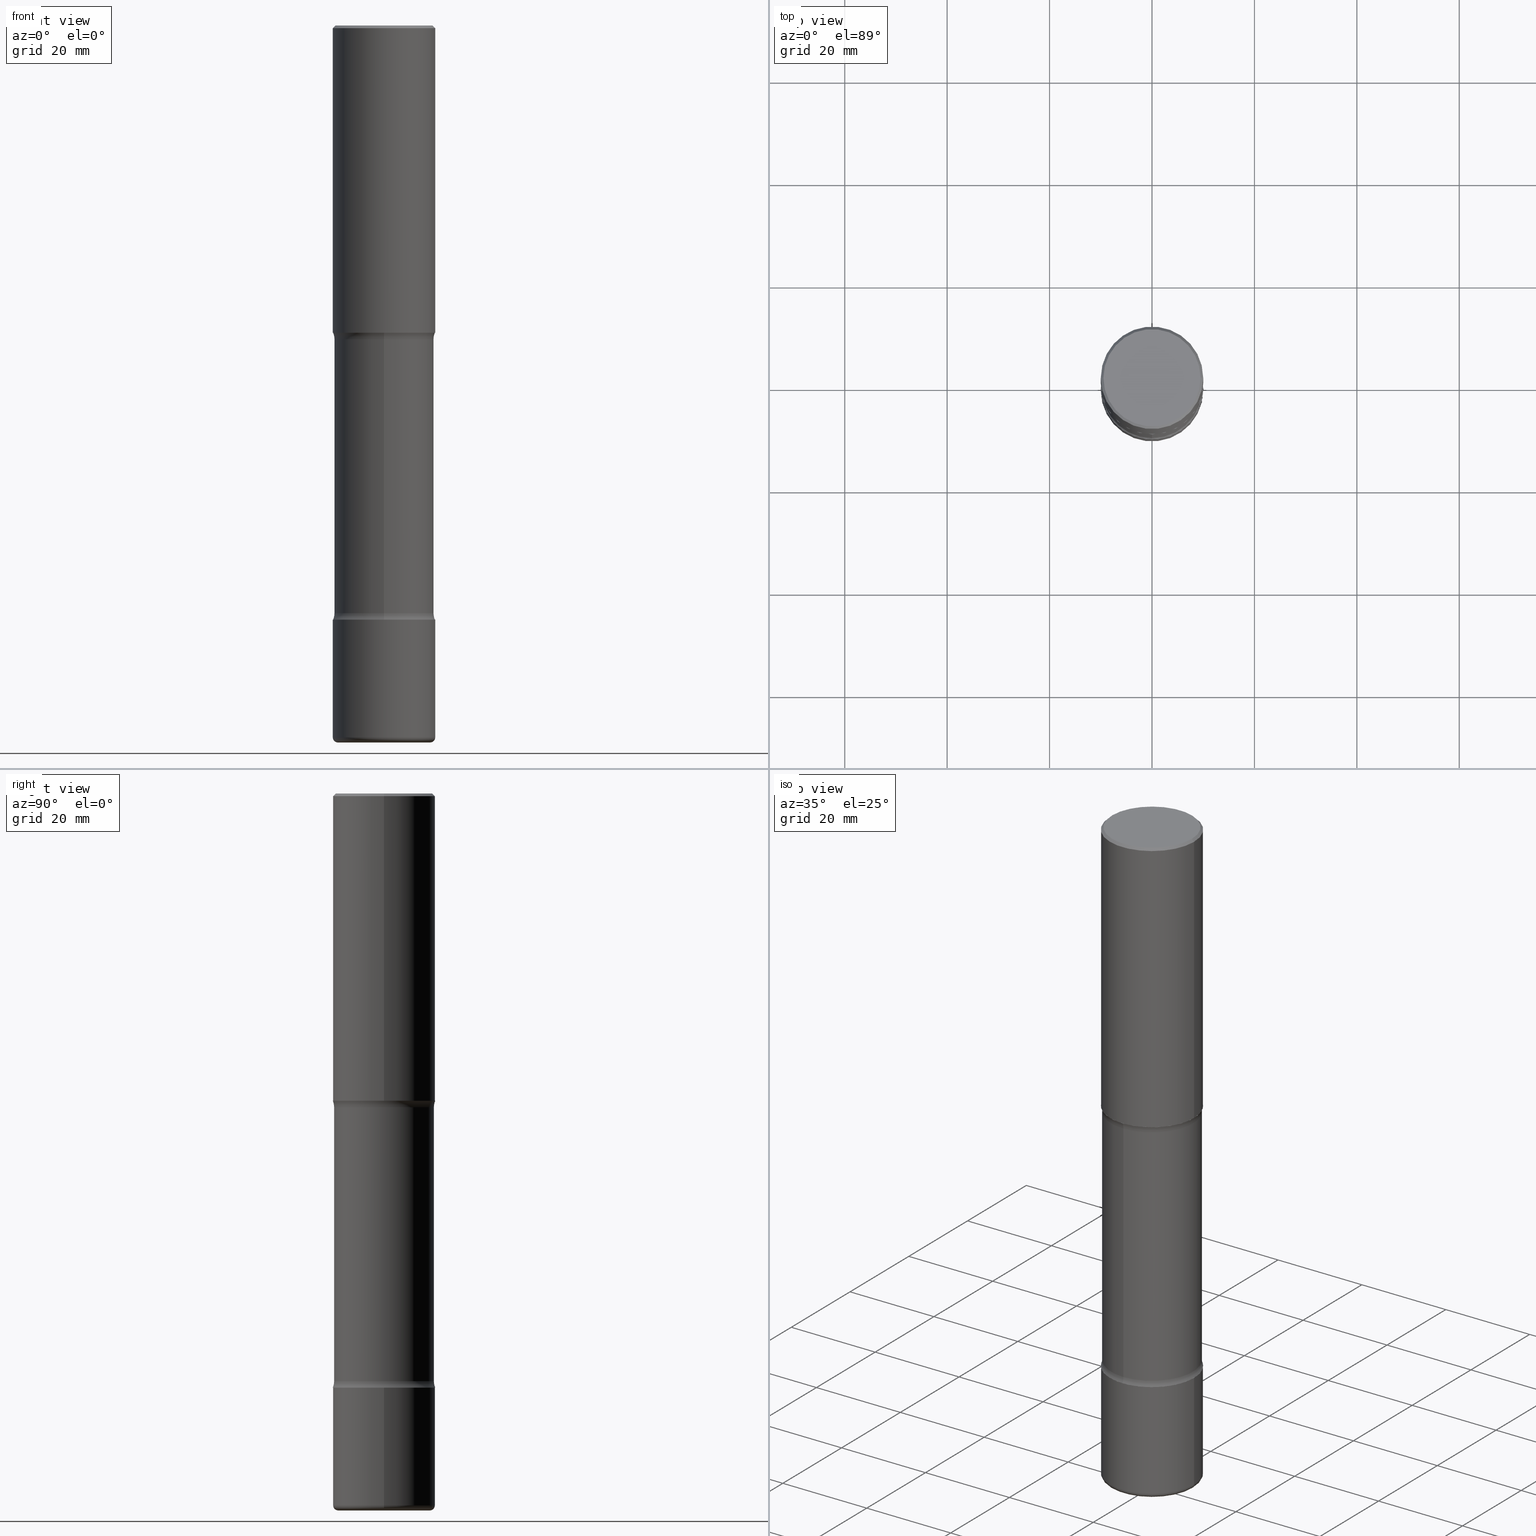
[diagram: canonical four-view strip — front | top / right | iso, engineering-drawing reading convention]
A machine part, canonical four-view strip (front | top / right | iso — engineering-drawing reading convention). The complete STEP part file that produces these views, byte-faithful:
ISO-10303-21;
HEADER;
FILE_DESCRIPTION (( 'STEP AP203' ),
    '1' );
FILE_NAME ('46938.STEP',
    '2024-03-02T06:04:21',
    ( '' ),
    ( '' ),
    'SwSTEP 2.0',
    'SolidWorks 2023',
    '' );
FILE_SCHEMA (( 'CONFIG_CONTROL_DESIGN' ));
ENDSEC;

DATA;
#1 = ORIENTED_EDGE ( 'NONE', *, *, #461, .T. ) ;
#2 = COORDINATED_UNIVERSAL_TIME_OFFSET ( 5, 0, .BEHIND. ) ;
#3 = EDGE_CURVE ( 'NONE', #6, #55, #187, .T. ) ;
#4 = DIRECTION ( 'NONE',  ( 1.000000000000000000, -6.982962677686265133E-15, 0.000000000000000000 ) ) ;
#5 = SECURITY_CLASSIFICATION_LEVEL ( 'unclassified' ) ;
#6 = VERTEX_POINT ( 'NONE', #19 ) ;
#7 = CIRCLE ( 'NONE', #311, 0.3937000000000002164 ) ;
#8 = CIRCLE ( 'NONE', #394, 0.3937000000000005495 ) ;
#9 = PLANE ( 'NONE',  #58 ) ;
#10 = CC_DESIGN_SECURITY_CLASSIFICATION ( #457, ( #297 ) ) ;
#11 = DIRECTION ( 'NONE',  ( -2.540811743831258719E-29, 3.354944825550891508E-15, 1.000000000000000000 ) ) ;
#12 = CARTESIAN_POINT ( 'NONE',  ( 2.677966186892794339E-15, 0.3834999999999843534, -4.517443352317409122 ) ) ;
#13 = CC_DESIGN_PERSON_AND_ORGANIZATION_ASSIGNMENT ( #349, #303, ( #299 ) ) ;
#14 = EDGE_CURVE ( 'NONE', #55, #72, #116, .T. ) ;
#15 = DIRECTION ( 'NONE',  ( 2.540811743831259279E-29, -3.354944825550891508E-15, -1.000000000000000000 ) ) ;
#16 = FACE_OUTER_BOUND ( 'NONE', #83, .T. ) ;
#17 = DIRECTION ( 'NONE',  ( 2.540811743831259279E-29, -3.354944825550891508E-15, -1.000000000000000000 ) ) ;
#18 = CIRCLE ( 'NONE', #337, 0.3937000000000003830 ) ;
#19 = CARTESIAN_POINT ( 'NONE',  ( -0.3543000000000003924, -1.651813482931766527E-14, -5.511800000000000033 ) ) ;
#20 = ORIENTED_EDGE ( 'NONE', *, *, #3, .T. ) ;
#21 = ORIENTED_EDGE ( 'NONE', *, *, #248, .T. ) ;
#22 = DIRECTION ( 'NONE',  ( -2.445468806185136597E-29, 3.491481338843145583E-15, 1.000000000000000000 ) ) ;
#23 = EDGE_LOOP ( 'NONE', ( #104, #472 ) ) ;
#24 = ORIENTED_EDGE ( 'NONE', *, *, #491, .T. ) ;
#25 = CONICAL_SURFACE ( 'NONE', #68, 0.3937000000000000499, 0.7853981633974473908 ) ;
#26 = AXIS2_PLACEMENT_3D ( 'NONE', #237, #381, #415 ) ;
#27 = DIRECTION ( 'NONE',  ( 6.982962677686265133E-15, 1.000000000000000000, -2.849385130288669478E-15 ) ) ;
#28 = DIRECTION ( 'NONE',  ( -6.982962677686265133E-15, -1.000000000000000000, 0.000000000000000000 ) ) ;
#29 = LOCAL_TIME ( 1, 4, 21.00000000000000000, #306 ) ;
#30 = VERTEX_POINT ( 'NONE', #304 ) ;
#31 = VERTEX_POINT ( 'NONE', #397 ) ;
#32 = CARTESIAN_POINT ( 'NONE',  ( -2.700978061722541995E-15, -0.3937000000000163702, -4.566899999999999515 ) ) ;
#33 = ORIENTED_EDGE ( 'NONE', *, *, #180, .T. ) ;
#34 = CARTESIAN_POINT ( 'NONE',  ( 5.566483839342124878E-29, -8.548599269470712439E-15, -2.362200000000000077 ) ) ;
#35 = ORIENTED_EDGE ( 'NONE', *, *, #174, .T. ) ;
#36 = CIRCLE ( 'NONE', #99, 0.3736999999999999766 ) ;
#37 = APPROVAL_PERSON_ORGANIZATION ( #169, #184, #560 ) ;
#38 = DIRECTION ( 'NONE',  ( 1.000000000000000000, -6.982962677686261977E-15, 0.000000000000000000 ) ) ;
#39 = ORIENTED_EDGE ( 'NONE', *, *, #309, .T. ) ;
#40 = DIRECTION ( 'NONE',  ( 1.000000000000000000, -6.982962677686265922E-15, 4.876176775795935793E-29 ) ) ;
#41 = VECTOR ( 'NONE', #220, 39.37007874015748143 ) ;
#42 = AXIS2_PLACEMENT_3D ( 'NONE', #320, #500, #478 ) ;
#43 = ADVANCED_FACE ( 'NONE', ( #316 ), #175, .T. ) ;
#44 = CALENDAR_DATE ( 2024, 2, 3 ) ;
#45 = APPROVAL_ROLE ( '' ) ;
#46 = CARTESIAN_POINT ( 'NONE',  ( 4.890937612370294178E-31, -6.982962677686321191E-17, -0.02000000000000008715 ) ) ;
#47 = EDGE_LOOP ( 'NONE', ( #240, #490, #24, #466 ) ) ;
#48 = CIRCLE ( 'NONE', #456, 0.3835000000000002296 ) ;
#49 = FACE_OUTER_BOUND ( 'NONE', #76, .T. ) ;
#50 = FACE_OUTER_BOUND ( 'NONE', #285, .T. ) ;
#51 = CARTESIAN_POINT ( 'NONE',  ( 1.116821149096690103E-28, -1.594524612636276117E-14, -4.566900000000000404 ) ) ;
#52 = DIRECTION ( 'NONE',  ( 6.982962677686265922E-15, 1.000000000000000000, -3.354944825550891508E-15 ) ) ;
#53 = CARTESIAN_POINT ( 'NONE',  ( 1.338258349496754075E-28, -1.910678247868523272E-14, -5.472400000000000375 ) ) ;
#54 = LINE ( 'NONE', #402, #407 ) ;
#55 = VERTEX_POINT ( 'NONE', #492 ) ;
#56 = CARTESIAN_POINT ( 'NONE',  ( 2.749192406205197601E-15, 0.3936999999999844513, -4.566900000000001292 ) ) ;
#57 = TOROIDAL_SURFACE ( 'NONE', #425, 0.5085000000000002851, 0.1250000000000000278 ) ;
#58 = AXIS2_PLACEMENT_3D ( 'NONE', #361, #264, #52 ) ;
#59 = DIRECTION ( 'NONE',  ( 1.000000000000000000, -6.982962677686266711E-15, 4.876176775795935793E-29 ) ) ;
#60 = LINE ( 'NONE', #317, #454 ) ;
#61 = ORIENTED_EDGE ( 'NONE', *, *, #494, .T. ) ;
#62 = DIRECTION ( 'NONE',  ( 2.540811743831259279E-29, -3.354944825550891508E-15, -1.000000000000000000 ) ) ;
#63 = DESIGN_CONTEXT ( 'detailed design', #214, 'design' ) ;
#64 = DIRECTION ( 'NONE',  ( 6.982962677686265133E-15, 1.000000000000000000, -2.849385130288669478E-15 ) ) ;
#65 = ORIENTED_EDGE ( 'NONE', *, *, #287, .T. ) ;
#66 = CARTESIAN_POINT ( 'NONE',  ( 0.000000000000000000, 0.000000000000000000, 0.000000000000000000 ) ) ;
#67 = ORIENTED_EDGE ( 'NONE', *, *, #269, .F. ) ;
#68 = AXIS2_PLACEMENT_3D ( 'NONE', #447, #493, #532 ) ;
#69 = AXIS2_PLACEMENT_3D ( 'NONE', #408, #270, #352 ) ;
#70 = CARTESIAN_POINT ( 'NONE',  ( 1.347893496593123646E-28, -1.924434684343564878E-14, -5.511800000000000033 ) ) ;
#71 = DIRECTION ( 'NONE',  ( 6.982962677686265133E-15, 1.000000000000000000, -3.561731412860836552E-15 ) ) ;
#72 = VERTEX_POINT ( 'NONE', #533 ) ;
#73 = DIRECTION ( 'NONE',  ( 1.000000000000000000, 0.000000000000000000, 0.000000000000000000 ) ) ;
#74 = EDGE_LOOP ( 'NONE', ( #423, #235 ) ) ;
#75 = PERSON_AND_ORGANIZATION ( #140, #190 ) ;
#76 = EDGE_LOOP ( 'NONE', ( #458, #290, #506, #278 ) ) ;
#77 = DIRECTION ( 'NONE',  ( 2.540811743831259279E-29, -3.354944825550891508E-15, -1.000000000000000000 ) ) ;
#78 = CIRCLE ( 'NONE', #153, 0.3835000000000001741 ) ;
#79 = LOCAL_TIME ( 1, 4, 21.00000000000000000, #438 ) ;
#80 = CC_DESIGN_PERSON_AND_ORGANIZATION_ASSIGNMENT ( #75, #244, ( #442 ) ) ;
#81 = APPROVAL_ROLE ( '' ) ;
#82 = CARTESIAN_POINT ( 'NONE',  ( 1.116821149096690103E-28, -1.594524612636276117E-14, -4.566900000000000404 ) ) ;
#83 = EDGE_LOOP ( 'NONE', ( #441, #468, #378, #33 ) ) ;
#84 = EDGE_CURVE ( 'NONE', #505, #416, #439, .T. ) ;
#85 = CLOSED_SHELL ( 'NONE', ( #254, #517, #173, #474, #437, #363, #318, #279 ) ) ;
#86 = AXIS2_PLACEMENT_3D ( 'NONE', #488, #11, #172 ) ;
#87 = APPROVAL_DATE_TIME ( #256, #184 ) ;
#88 = APPROVAL_DATE_TIME ( #482, #123 ) ;
#89 = FACE_OUTER_BOUND ( 'NONE', #141, .T. ) ;
#90 = DIRECTION ( 'NONE',  ( 1.000000000000000000, -6.982962677686265922E-15, 0.000000000000000000 ) ) ;
#91 = AXIS2_PLACEMENT_3D ( 'NONE', #399, #15, #531 ) ;
#92 = DIRECTION ( 'NONE',  ( -2.445468806185136597E-29, 3.491481338843145583E-15, 1.000000000000000000 ) ) ;
#93 = VERTEX_POINT ( 'NONE', #481 ) ;
#94 = ADVANCED_FACE ( 'NONE', ( #16 ), #25, .T. ) ;
#95 = DIRECTION ( 'NONE',  ( -2.445468806185136597E-29, 3.491481338843145583E-15, 1.000000000000000000 ) ) ;
#96 = CARTESIAN_POINT ( 'NONE',  ( 5.692143870584579365E-29, -8.714523593702518262E-15, -2.411656647682592247 ) ) ;
#97 = CARTESIAN_POINT ( 'NONE',  ( -0.3937000000000001054, 2.797406750687515181E-15, -1.936584745033357016E-29 ) ) ;
#98 = CIRCLE ( 'NONE', #346, 0.3937000000000002164 ) ;
#99 = AXIS2_PLACEMENT_3D ( 'NONE', #176, #92, #528 ) ;
#100 = CARTESIAN_POINT ( 'NONE',  ( 1.104255145972444542E-28, -1.577932180213095535E-14, -4.517443352317408234 ) ) ;
#101 = EDGE_CURVE ( 'NONE', #55, #31, #526, .T. ) ;
#102 = ORIENTED_EDGE ( 'NONE', *, *, #291, .T. ) ;
#103 = DIRECTION ( 'NONE',  ( -1.000000000000000000, 6.982962677686265922E-15, -4.876176775795935793E-29 ) ) ;
#104 = ORIENTED_EDGE ( 'NONE', *, *, #210, .F. ) ;
#105 = DIRECTION ( 'NONE',  ( 1.000000000000000000, -6.982962677686265133E-15, 0.000000000000000000 ) ) ;
#106 = ORIENTED_EDGE ( 'NONE', *, *, #509, .F. ) ;
#107 = CARTESIAN_POINT ( 'NONE',  ( 1.338258349496754075E-28, -1.910678247868523272E-14, -5.472400000000000375 ) ) ;
#108 = FACE_OUTER_BOUND ( 'NONE', #23, .T. ) ;
#109 = TOROIDAL_SURFACE ( 'NONE', #296, 0.5085000000000001741, 0.1249999999999999584 ) ;
#110 = DIRECTION ( 'NONE',  ( 1.000000000000000000, -6.982962677686266711E-15, 0.000000000000000000 ) ) ;
#111 = EDGE_CURVE ( 'NONE', #416, #336, #334, .T. ) ;
#112 = ORIENTED_EDGE ( 'NONE', *, *, #364, .F. ) ;
#113 = DIRECTION ( 'NONE',  ( -1.000000000000000000, 6.982962677686265922E-15, -4.876176775795935793E-29 ) ) ;
#114 = CARTESIAN_POINT ( 'NONE',  ( 0.3736999999999999766, -2.667287895133368359E-15, 8.537024980219259100E-18 ) ) ;
#115 = ORIENTED_EDGE ( 'NONE', *, *, #138, .F. ) ;
#116 = CIRCLE ( 'NONE', #514, 0.3937000000000002164 ) ;
#117 = CIRCLE ( 'NONE', #91, 0.3937000000000003830 ) ;
#118 = EDGE_CURVE ( 'NONE', #203, #505, #282, .T. ) ;
#119 = EDGE_LOOP ( 'NONE', ( #547, #61, #65, #67 ) ) ;
#120 = AXIS2_PLACEMENT_3D ( 'NONE', #412, #231, #27 ) ;
#121 = DATE_AND_TIME ( #519, #170 ) ;
#122 =( GEOMETRIC_REPRESENTATION_CONTEXT ( 3 ) GLOBAL_UNCERTAINTY_ASSIGNED_CONTEXT ( ( #146 ) ) GLOBAL_UNIT_ASSIGNED_CONTEXT ( ( #283, #431, #426 ) ) REPRESENTATION_CONTEXT ( 'NONE', 'WORKASPACE' ) );
#123 = APPROVAL ( #522, 'UNSPECIFIED' ) ;
#124 = CARTESIAN_POINT ( 'NONE',  ( -0.3543000000000002814, -1.658932956588719576E-14, -5.472400000000000375 ) ) ;
#125 = LINE ( 'NONE', #223, #286 ) ;
#126 = PERSON_AND_ORGANIZATION_ROLE ( 'design_supplier' ) ;
#127 = DIRECTION ( 'NONE',  ( 2.540811743831259279E-29, -3.354944825550891508E-15, -1.000000000000000000 ) ) ;
#128 = CYLINDRICAL_SURFACE ( 'NONE', #166, 0.3937000000000002720 ) ;
#129 = PLANE ( 'NONE',  #86 ) ;
#130 = EDGE_LOOP ( 'NONE', ( #429, #510 ) ) ;
#131 = DIRECTION ( 'NONE',  ( 2.540811743831259279E-29, -3.354944825550891508E-15, -1.000000000000000000 ) ) ;
#132 = DIRECTION ( 'NONE',  ( 1.000000000000000000, -6.982962677686265922E-15, 0.000000000000000000 ) ) ;
#133 = DIRECTION ( 'NONE',  ( 2.540811743831259279E-29, -3.354944825550891508E-15, -1.000000000000000000 ) ) ;
#134 = DIRECTION ( 'NONE',  ( -2.445468806185136597E-29, 3.491481338843145583E-15, 1.000000000000000000 ) ) ;
#135 = CYLINDRICAL_SURFACE ( 'NONE', #179, 0.3937000000000001054 ) ;
#136 = ORIENTED_EDGE ( 'NONE', *, *, #291, .F. ) ;
#137 = CIRCLE ( 'NONE', #217, 0.1249999999999999584 ) ;
#138 = EDGE_CURVE ( 'NONE', #72, #55, #98, .T. ) ;
#139 = DIRECTION ( 'NONE',  ( 1.000000000000000000, -6.982962677686266711E-15, 0.000000000000000000 ) ) ;
#140 = PERSON ( 'UNSPECIFIED', 'UNSPECIFIED', 'UNSPECIFIED', ('UNSPECIFIED'), ('UNSPECIFIED'), ('UNSPECIFIED') ) ;
#141 = EDGE_LOOP ( 'NONE', ( #470, #233 ) ) ;
#142 = CARTESIAN_POINT ( 'NONE',  ( 3.550836521603578073E-15, 0.5084999999999842979, -4.517443352317410010 ) ) ;
#143 = DIRECTION ( 'NONE',  ( -2.445468806185136597E-29, 3.491481338843145583E-15, 1.000000000000000000 ) ) ;
#144 = DIRECTION ( 'NONE',  ( 2.445468806185136597E-29, -3.491481338843145583E-15, -1.000000000000000000 ) ) ;
#145 = EDGE_LOOP ( 'NONE', ( #112, #183, #156, #530 ) ) ;
#146 = UNCERTAINTY_MEASURE_WITH_UNIT (LENGTH_MEASURE( 1.000000000000000082E-05 ), #283, 'distance_accuracy_value', 'NONE');
#147 = DIRECTION ( 'NONE',  ( 1.000000000000000000, -6.982962677686265133E-15, 0.000000000000000000 ) ) ;
#148 = ORIENTED_EDGE ( 'NONE', *, *, #250, .T. ) ;
#149 = CC_DESIGN_DATE_AND_TIME_ASSIGNMENT ( #121, #253, ( #457 ) ) ;
#150 = CARTESIAN_POINT ( 'NONE',  ( 3.550836521603525613E-15, 0.5084999999999916254, -2.411656647682594468 ) ) ;
#151 = CARTESIAN_POINT ( 'NONE',  ( 0.3937000000000000499, -2.770807688499515734E-15, -0.02000000000000008715 ) ) ;
#152 = CLOSED_SHELL ( 'NONE', ( #43, #433, #159, #504, #157, #390 ) ) ;
#153 = AXIS2_PLACEMENT_3D ( 'NONE', #409, #376, #371 ) ;
#154 = DIRECTION ( 'NONE',  ( 1.000000000000000000, -6.982962677686266711E-15, 0.000000000000000000 ) ) ;
#155 = LENGTH_MEASURE_WITH_UNIT ( LENGTH_MEASURE( 0.02539999999999999897 ), #475 );
#156 = ORIENTED_EDGE ( 'NONE', *, *, #111, .T. ) ;
#157 = ADVANCED_FACE ( 'NONE', ( #49 ), #128, .T. ) ;
#158 = DIRECTION ( 'NONE',  ( -2.445468806185136597E-29, 3.491481338843145583E-15, 1.000000000000000000 ) ) ;
#159 = ADVANCED_FACE ( 'NONE', ( #465 ), #312, .T. ) ;
#160 = CIRCLE ( 'NONE', #263, 0.3937000000000003830 ) ;
#161 = AXIS2_PLACEMENT_3D ( 'NONE', #66, #464, #73 ) ;
#162 = MANIFOLD_SOLID_BREP ( 'Body-Move/Copy2[1]', #152 ) ;
#163 = APPLICATION_CONTEXT ( 'configuration controlled 3d designs of mechanical parts and assemblies' ) ;
#164 = PERSON_AND_ORGANIZATION ( #140, #190 ) ;
#165 = DIRECTION ( 'NONE',  ( -2.445468806185136597E-29, 3.491481338843145583E-15, 1.000000000000000000 ) ) ;
#166 = AXIS2_PLACEMENT_3D ( 'NONE', #400, #165, #511 ) ;
#167 = CIRCLE ( 'NONE', #353, 0.3937000000000002164 ) ;
#168 = AXIS2_PLACEMENT_3D ( 'NONE', #82, #550, #335 ) ;
#169 = PERSON_AND_ORGANIZATION ( #140, #190 ) ;
#170 = LOCAL_TIME ( 1, 4, 21.00000000000000000, #2 ) ;
#171 = CARTESIAN_POINT ( 'NONE',  ( 1.104726680180063437E-28, -1.577256916389725054E-14, -4.517443352317408234 ) ) ;
#172 = DIRECTION ( 'NONE',  ( -6.982962677686265922E-15, -1.000000000000000000, 3.354944825550891508E-15 ) ) ;
#173 = ADVANCED_FACE ( 'NONE', ( #216 ), #57, .F. ) ;
#174 = EDGE_CURVE ( 'NONE', #30, #219, #414, .T. ) ;
#175 = CYLINDRICAL_SURFACE ( 'NONE', #261, 0.3937000000000002720 ) ;
#176 = CARTESIAN_POINT ( 'NONE',  ( -2.087702828670435750E-46, 2.980686340760889474E-32, 8.537024980200807150E-18 ) ) ;
#177 = CARTESIAN_POINT ( 'NONE',  ( 5.692143870584579365E-29, -8.714523593702518262E-15, -2.411656647682592247 ) ) ;
#178 = EDGE_CURVE ( 'NONE', #72, #333, #60, .T. ) ;
#179 = AXIS2_PLACEMENT_3D ( 'NONE', #321, #275, #375 ) ;
#180 = EDGE_CURVE ( 'NONE', #336, #416, #246, .T. ) ;
#181 = DIRECTION ( 'NONE',  ( 1.000000000000000000, -6.982962677686265133E-15, 0.000000000000000000 ) ) ;
#182 = DIRECTION ( 'NONE',  ( -2.445468806185136877E-29, 3.491481338843145188E-15, 1.000000000000000000 ) ) ;
#183 = ORIENTED_EDGE ( 'NONE', *, *, #84, .T. ) ;
#184 = APPROVAL ( #249, 'UNSPECIFIED' ) ;
#185 = DIRECTION ( 'NONE',  ( 1.000000000000000000, -6.982962677686261977E-15, 0.000000000000000000 ) ) ;
#186 = ORIENTED_EDGE ( 'NONE', *, *, #138, .T. ) ;
#187 = CIRCLE ( 'NONE', #372, 0.03939999999999978936 ) ;
#188 = CIRCLE ( 'NONE', #515, 0.1250000000000000278 ) ;
#189 = VERTEX_POINT ( 'NONE', #267 ) ;
#190 = ORGANIZATION ( 'UNSPECIFIED', 'UNSPECIFIED', '' ) ;
#191 = DIRECTION ( 'NONE',  ( 2.540811743831259279E-29, -3.354944825550891508E-15, -1.000000000000000000 ) ) ;
#192 = CYLINDRICAL_SURFACE ( 'NONE', #476, 0.3835000000000001741 ) ;
#193 = CARTESIAN_POINT ( 'NONE',  ( 4.890937612370294178E-31, -6.982962677686321191E-17, -0.02000000000000008715 ) ) ;
#194 = FACE_OUTER_BOUND ( 'NONE', #418, .T. ) ;
#195 = ORIENTED_EDGE ( 'NONE', *, *, #322, .F. ) ;
#196 = DIRECTION ( 'NONE',  ( 2.438088387897960049E-29, -3.491481338843145188E-15, -1.000000000000000000 ) ) ;
#197 = EDGE_LOOP ( 'NONE', ( #21, #20, #115, #557 ) ) ;
#198 = APPLICATION_PROTOCOL_DEFINITION ( 'international standard', 'config_control_design', 1994, #163 ) ;
#199 = VERTEX_POINT ( 'NONE', #12 ) ;
#200 = CARTESIAN_POINT ( 'NONE',  ( 5.776686413970530874E-29, -8.247577218615279626E-15, -2.362200000000000077 ) ) ;
#201 = DIRECTION ( 'NONE',  ( -2.445468806185136597E-29, 3.491481338843145583E-15, 1.000000000000000000 ) ) ;
#202 = EDGE_LOOP ( 'NONE', ( #186, #239, #546, #383 ) ) ;
#203 = VERTEX_POINT ( 'NONE', #451 ) ;
#204 = VECTOR ( 'NONE', #405, 39.37007874015748143 ) ;
#205 = DIRECTION ( 'NONE',  ( 1.000000000000000000, -6.982962677686266711E-15, 4.883557194083112340E-29 ) ) ;
#206 = CARTESIAN_POINT ( 'NONE',  ( 1.116821149096690103E-28, -1.594524612636276117E-14, -4.566900000000000404 ) ) ;
#207 = CIRCLE ( 'NONE', #168, 0.3937000000000003830 ) ;
#208 = PERSON_AND_ORGANIZATION_ROLE ( 'creator' ) ;
#209 = CC_DESIGN_PERSON_AND_ORGANIZATION_ASSIGNMENT ( #164, #126, ( #297 ) ) ;
#210 = EDGE_CURVE ( 'NONE', #189, #93, #7, .T. ) ;
#211 = PERSON_AND_ORGANIZATION ( #140, #190 ) ;
#212 = ORIENTED_EDGE ( 'NONE', *, *, #3, .F. ) ;
#213 = APPROVAL_STATUS ( 'not_yet_approved' ) ;
#214 = APPLICATION_CONTEXT ( 'configuration controlled 3d designs of mechanical parts and assemblies' ) ;
#215 = CARTESIAN_POINT ( 'NONE',  ( -2.087702828670435750E-46, 2.980686340760889474E-32, 8.537024980200807150E-18 ) ) ;
#216 = FACE_OUTER_BOUND ( 'NONE', #47, .T. ) ;
#217 = AXIS2_PLACEMENT_3D ( 'NONE', #508, #339, #549 ) ;
#218 = APPROVAL_DATE_TIME ( #389, #469 ) ;
#219 = VERTEX_POINT ( 'NONE', #242 ) ;
#220 = DIRECTION ( 'NONE',  ( -2.445468806185136877E-29, 3.491481338843145188E-15, 1.000000000000000000 ) ) ;
#221 = CARTESIAN_POINT ( 'NONE',  ( 0.000000000000000000, 0.000000000000000000, 0.000000000000000000 ) ) ;
#222 = DIRECTION ( 'NONE',  ( -0.7071067811865469066, 2.468850131082250355E-15, -0.7071067811865481278 ) ) ;
#223 = CARTESIAN_POINT ( 'NONE',  ( -0.3937000000000000499, 2.679362779428219918E-15, -0.02000000000000008715 ) ) ;
#224 = CARTESIAN_POINT ( 'NONE',  ( 5.706867177328101734E-29, -8.693438980447217573E-15, -2.411656647682592691 ) ) ;
#225 = CARTESIAN_POINT ( 'NONE',  ( 5.706867177328101734E-29, -8.693438980447217573E-15, -2.411656647682592691 ) ) ;
#226 = LINE ( 'NONE', #527, #435 ) ;
#227 = ORIENTED_EDGE ( 'NONE', *, *, #248, .F. ) ;
#228 = AXIS2_PLACEMENT_3D ( 'NONE', #51, #445, #103 ) ;
#229 = CC_DESIGN_PERSON_AND_ORGANIZATION_ASSIGNMENT ( #211, #391, ( #457 ) ) ;
#230 = EDGE_LOOP ( 'NONE', ( #385, #293, #323, #102 ) ) ;
#231 = DIRECTION ( 'NONE',  ( 2.540811743831259279E-29, -3.354944825550891508E-15, -1.000000000000000000 ) ) ;
#232 = DIRECTION ( 'NONE',  ( 6.982962677686265133E-15, 1.000000000000000000, -2.849385130288669478E-15 ) ) ;
#233 = ORIENTED_EDGE ( 'NONE', *, *, #284, .T. ) ;
#234 = CYLINDRICAL_SURFACE ( 'NONE', #120, 0.3835000000000001741 ) ;
#235 = ORIENTED_EDGE ( 'NONE', *, *, #364, .T. ) ;
#236 = AXIS2_PLACEMENT_3D ( 'NONE', #70, #196, #113 ) ;
#237 = CARTESIAN_POINT ( 'NONE',  ( 1.104726680180063437E-28, -1.577256916389725054E-14, -4.517443352317408234 ) ) ;
#238 = CONICAL_SURFACE ( 'NONE', #559, 0.3937000000000000499, 0.7853981633974473908 ) ;
#239 = ORIENTED_EDGE ( 'NONE', *, *, #101, .T. ) ;
#240 = ORIENTED_EDGE ( 'NONE', *, *, #461, .F. ) ;
#241 = FACE_OUTER_BOUND ( 'NONE', #145, .T. ) ;
#242 = CARTESIAN_POINT ( 'NONE',  ( -2.665989521933963355E-15, -0.3835000000000089448, -2.411656647682590915 ) ) ;
#243 = ORIENTED_EDGE ( 'NONE', *, *, #111, .F. ) ;
#244 = PERSON_AND_ORGANIZATION_ROLE ( 'design_owner' ) ;
#245 = EDGE_LOOP ( 'NONE', ( #281, #268 ) ) ;
#246 = CIRCLE ( 'NONE', #485, 0.3937000000000000499 ) ;
#247 = AXIS2_PLACEMENT_3D ( 'NONE', #225, #191, #384 ) ;
#248 = EDGE_CURVE ( 'NONE', #552, #6, #443, .T. ) ;
#249 = APPROVAL_STATUS ( 'not_yet_approved' ) ;
#250 = EDGE_CURVE ( 'NONE', #552, #72, #486, .T. ) ;
#251 = AXIS2_PLACEMENT_3D ( 'NONE', #142, #329, #28 ) ;
#252 = CIRCLE ( 'NONE', #273, 0.1250000000000000278 ) ;
#253 = DATE_TIME_ROLE ( 'classification_date' ) ;
#254 = ADVANCED_FACE ( 'NONE', ( #420 ), #234, .T. ) ;
#255 = CARTESIAN_POINT ( 'NONE',  ( -0.3937000000000002720, 2.797406750687516364E-15, -1.936584745033358137E-29 ) ) ;
#256 = DATE_AND_TIME ( #44, #325 ) ;
#257 = VERTEX_POINT ( 'NONE', #543 ) ;
#258 = CARTESIAN_POINT ( 'NONE',  ( 1.338258349496754075E-28, -1.910678247868523272E-14, -5.472400000000000375 ) ) ;
#259 = FACE_OUTER_BOUND ( 'NONE', #74, .T. ) ;
#260 = PLANE ( 'NONE',  #228 ) ;
#261 = AXIS2_PLACEMENT_3D ( 'NONE', #366, #452, #59 ) ;
#262 = TOROIDAL_SURFACE ( 'NONE', #26, 0.5085000000000001741, 0.1249999999999999584 ) ;
#263 = AXIS2_PLACEMENT_3D ( 'NONE', #206, #201, #38 ) ;
#264 = DIRECTION ( 'NONE',  ( 2.540811743831258719E-29, -3.354944825550891508E-15, -1.000000000000000000 ) ) ;
#265 = DIRECTION ( 'NONE',  ( -2.445468806185136597E-29, 3.491481338843145583E-15, 1.000000000000000000 ) ) ;
#266 = ORIENTED_EDGE ( 'NONE', *, *, #294, .T. ) ;
#267 = CARTESIAN_POINT ( 'NONE',  ( 0.3937000000000002164, -1.099676962482036442E-14, -2.362200000000000077 ) ) ;
#268 = ORIENTED_EDGE ( 'NONE', *, *, #491, .F. ) ;
#269 = EDGE_CURVE ( 'NONE', #327, #199, #507, .T. ) ;
#270 = DIRECTION ( 'NONE',  ( 2.438088387897960049E-29, -3.491481338843145188E-15, -1.000000000000000000 ) ) ;
#271 = ORIENTED_EDGE ( 'NONE', *, *, #14, .F. ) ;
#272 = AXIS2_PLACEMENT_3D ( 'NONE', #100, #499, #64 ) ;
#273 = AXIS2_PLACEMENT_3D ( 'NONE', #150, #295, #477 ) ;
#274 = DIRECTION ( 'NONE',  ( -2.445468806185136597E-29, 3.491481338843145583E-15, 1.000000000000000000 ) ) ;
#275 = DIRECTION ( 'NONE',  ( -2.445468806185136597E-29, 3.491481338843145583E-15, 1.000000000000000000 ) ) ;
#276 = DIRECTION ( 'NONE',  ( -6.982962677686266711E-15, -1.000000000000000000, 3.491481338843145583E-15 ) ) ;
#277 = CARTESIAN_POINT ( 'NONE',  ( 1.347893496593123646E-28, -1.924434684343564878E-14, -5.511800000000000033 ) ) ;
#278 = ORIENTED_EDGE ( 'NONE', *, *, #284, .F. ) ;
#279 = ADVANCED_FACE ( 'NONE', ( #413 ), #192, .T. ) ;
#280 = CARTESIAN_POINT ( 'NONE',  ( 1.347893496593123646E-28, -1.924434684343564878E-14, -5.511800000000000033 ) ) ;
#281 = ORIENTED_EDGE ( 'NONE', *, *, #388, .F. ) ;
#282 = CIRCLE ( 'NONE', #301, 0.3736999999999999766 ) ;
#283 =( CONVERSION_BASED_UNIT ( 'INCH', #155 ) LENGTH_UNIT ( ) NAMED_UNIT ( #424 ) );
#284 = EDGE_CURVE ( 'NONE', #31, #333, #18, .T. ) ;
#285 = EDGE_LOOP ( 'NONE', ( #379, #471, #243, #331 ) ) ;
#286 = VECTOR ( 'NONE', #222, 39.37007874015748143 ) ;
#287 = EDGE_CURVE ( 'NONE', #541, #199, #78, .T. ) ;
#288 = MECHANICAL_CONTEXT ( 'NONE', #163, 'mechanical' ) ;
#289 = FACE_OUTER_BOUND ( 'NONE', #197, .T. ) ;
#290 = ORIENTED_EDGE ( 'NONE', *, *, #14, .T. ) ;
#291 = EDGE_CURVE ( 'NONE', #199, #541, #467, .T. ) ;
#292 = FACE_OUTER_BOUND ( 'NONE', #404, .T. ) ;
#293 = ORIENTED_EDGE ( 'NONE', *, *, #449, .F. ) ;
#294 = EDGE_CURVE ( 'NONE', #93, #189, #167, .T. ) ;
#295 = DIRECTION ( 'NONE',  ( -1.000000000000000000, 6.982962677686265922E-15, -4.883557194083112901E-29 ) ) ;
#296 = AXIS2_PLACEMENT_3D ( 'NONE', #171, #133, #307 ) ;
#297 = PRODUCT_DEFINITION_FORMATION_WITH_SPECIFIED_SOURCE ( 'ANY', '', #442, .NOT_KNOWN. ) ;
#298 = VERTEX_POINT ( 'NONE', #330 ) ;
#299 = PRODUCT_DEFINITION ( 'UNKNOWN', '', #297, #63 ) ;
#300 = COORDINATED_UNIVERSAL_TIME_OFFSET ( 5, 0, .BEHIND. ) ;
#301 = AXIS2_PLACEMENT_3D ( 'NONE', #215, #95, #523 ) ;
#302 = AXIS2_PLACEMENT_3D ( 'NONE', #427, #345, #40 ) ;
#303 = PERSON_AND_ORGANIZATION_ROLE ( 'creator' ) ;
#304 = CARTESIAN_POINT ( 'NONE',  ( 2.677966186892741091E-15, 0.3834999999999914588, -2.411656647682594024 ) ) ;
#305 = CARTESIAN_POINT ( 'NONE',  ( -0.3937000000000000499, 2.679362779428219918E-15, -0.02000000000000008715 ) ) ;
#306 = COORDINATED_UNIVERSAL_TIME_OFFSET ( 5, 0, .BEHIND. ) ;
#307 = DIRECTION ( 'NONE',  ( 6.982962677686265133E-15, 1.000000000000000000, -3.354944825550891508E-15 ) ) ;
#308 = DIRECTION ( 'NONE',  ( -2.445468806185136877E-29, 3.491481338843145188E-15, 1.000000000000000000 ) ) ;
#309 = EDGE_CURVE ( 'NONE', #6, #552, #495, .T. ) ;
#310 = FACE_OUTER_BOUND ( 'NONE', #130, .T. ) ;
#311 = AXIS2_PLACEMENT_3D ( 'NONE', #200, #551, #154 ) ;
#312 = PLANE ( 'NONE',  #236 ) ;
#313 = AXIS2_PLACEMENT_3D ( 'NONE', #277, #502, #105 ) ;
#314 = APPROVAL_PERSON_ORGANIZATION ( #355, #123, #81 ) ;
#315 = ORIENTED_EDGE ( 'NONE', *, *, #174, .F. ) ;
#316 = FACE_OUTER_BOUND ( 'NONE', #202, .T. ) ;
#317 = CARTESIAN_POINT ( 'NONE',  ( 0.3937000000000002720, -2.749192406205085189E-15, 1.919750796630861293E-29 ) ) ;
#318 = ADVANCED_FACE ( 'NONE', ( #462 ), #109, .F. ) ;
#319 = DIRECTION ( 'NONE',  ( -1.000000000000000000, 7.105427357601014480E-15, 0.000000000000000000 ) ) ;
#320 = CARTESIAN_POINT ( 'NONE',  ( 1.338258349496754075E-28, -1.910678247868523272E-14, -5.472400000000000375 ) ) ;
#321 = CARTESIAN_POINT ( 'NONE',  ( 0.000000000000000000, 0.000000000000000000, 0.000000000000000000 ) ) ;
#322 = EDGE_CURVE ( 'NONE', #93, #336, #450, .T. ) ;
#323 = ORIENTED_EDGE ( 'NONE', *, *, #269, .T. ) ;
#324 = AXIS2_PLACEMENT_3D ( 'NONE', #525, #127, #483 ) ;
#325 = LOCAL_TIME ( 1, 4, 21.00000000000000000, #393 ) ;
#326 = CARTESIAN_POINT ( 'NONE',  ( 1.116821149096690103E-28, -1.594524612636276117E-14, -4.566900000000000404 ) ) ;
#327 = VERTEX_POINT ( 'NONE', #56 ) ;
#328 = DIRECTION ( 'NONE',  ( 6.860497997771532351E-15, 1.000000000000000000, 0.000000000000000000 ) ) ;
#329 = DIRECTION ( 'NONE',  ( -1.000000000000000000, 6.982962677686265922E-15, -4.883557194083112901E-29 ) ) ;
#330 = CARTESIAN_POINT ( 'NONE',  ( 2.749192406205143170E-15, 0.3936999999999920563, -2.362200000000001854 ) ) ;
#331 = ORIENTED_EDGE ( 'NONE', *, *, #369, .F. ) ;
#332 = CARTESIAN_POINT ( 'NONE',  ( 0.3543000000000002814, -2.158084615538947751E-14, -5.472400000000000375 ) ) ;
#333 = VERTEX_POINT ( 'NONE', #524 ) ;
#334 = CIRCLE ( 'NONE', #558, 0.3937000000000000499 ) ;
#335 = DIRECTION ( 'NONE',  ( 6.982962677686265133E-15, 1.000000000000000000, -2.775563112689113934E-15 ) ) ;
#336 = VERTEX_POINT ( 'NONE', #305 ) ;
#337 = AXIS2_PLACEMENT_3D ( 'NONE', #326, #22, #185 ) ;
#338 = CC_DESIGN_APPROVAL ( #123, ( #457 ) ) ;
#339 = DIRECTION ( 'NONE',  ( 1.000000000000000000, -6.860497997771530774E-15, 4.842470969663844004E-29 ) ) ;
#340 = PLANE ( 'NONE',  #302 ) ;
#341 = ORIENTED_EDGE ( 'NONE', *, *, #180, .F. ) ;
#342 = ADVANCED_FACE ( 'NONE', ( #259 ), #367, .F. ) ;
#343 = ORIENTED_EDGE ( 'NONE', *, *, #388, .T. ) ;
#344 = FACE_OUTER_BOUND ( 'NONE', #119, .T. ) ;
#345 = DIRECTION ( 'NONE',  ( -2.438088387897960049E-29, 3.491481338843145188E-15, 1.000000000000000000 ) ) ;
#346 = AXIS2_PLACEMENT_3D ( 'NONE', #53, #134, #4 ) ;
#347 = CIRCLE ( 'NONE', #324, 0.3937000000000005495 ) ;
#348 = ADVANCED_FACE ( 'NONE', ( #50 ), #487, .T. ) ;
#349 = PERSON_AND_ORGANIZATION ( #140, #190 ) ;
#350 = EDGE_CURVE ( 'NONE', #30, #199, #226, .T. ) ;
#351 = DATE_AND_TIME ( #480, #79 ) ;
#352 = DIRECTION ( 'NONE',  ( -1.000000000000000000, 6.982962677686265922E-15, -4.876176775795935793E-29 ) ) ;
#353 = AXIS2_PLACEMENT_3D ( 'NONE', #544, #143, #139 ) ;
#354 = APPROVAL_PERSON_ORGANIZATION ( #518, #469, #45 ) ;
#355 = PERSON_AND_ORGANIZATION ( #140, #190 ) ;
#356 = EDGE_CURVE ( 'NONE', #203, #336, #125, .T. ) ;
#357 = DIRECTION ( 'NONE',  ( 7.105427357601001859E-15, 1.000000000000000000, -3.491481338843145583E-15 ) ) ;
#358 = LINE ( 'NONE', #448, #362 ) ;
#359 = ADVANCED_BREP_SHAPE_REPRESENTATION ( '46938', ( #162, #548, #365, #161 ), #122 ) ;
#360 = DIRECTION ( 'NONE',  ( 0.7071067811865469066, -7.319954787623254468E-15, -0.7071067811865481278 ) ) ;
#361 = CARTESIAN_POINT ( 'NONE',  ( 5.776686413970530874E-29, -8.247577218615279626E-15, -2.362200000000000077 ) ) ;
#362 = VECTOR ( 'NONE', #308, 39.37007874015748143 ) ;
#363 = ADVANCED_FACE ( 'NONE', ( #310 ), #129, .F. ) ;
#364 = EDGE_CURVE ( 'NONE', #505, #203, #36, .T. ) ;
#365 = MANIFOLD_SOLID_BREP ( 'Body-Move/Copy2[4]', #85 ) ;
#366 = CARTESIAN_POINT ( 'NONE',  ( 0.000000000000000000, 0.000000000000000000, 0.000000000000000000 ) ) ;
#367 = PLANE ( 'NONE',  #69 ) ;
#368 = ORIENTED_EDGE ( 'NONE', *, *, #556, .T. ) ;
#369 = EDGE_CURVE ( 'NONE', #189, #416, #358, .T. ) ;
#370 = EDGE_CURVE ( 'NONE', #219, #541, #54, .T. ) ;
#371 = DIRECTION ( 'NONE',  ( 6.982962677686265133E-15, 1.000000000000000000, -2.849385130288669478E-15 ) ) ;
#372 = AXIS2_PLACEMENT_3D ( 'NONE', #124, #357, #319 ) ;
#373 = EDGE_LOOP ( 'NONE', ( #227, #463 ) ) ;
#374 = AXIS2_PLACEMENT_3D ( 'NONE', #107, #158, #205 ) ;
#375 = DIRECTION ( 'NONE',  ( 1.000000000000000000, -6.982962677686266711E-15, 4.876176775795935793E-29 ) ) ;
#376 = DIRECTION ( 'NONE',  ( 2.540811743831259279E-29, -3.354944825550891508E-15, -1.000000000000000000 ) ) ;
#377 = CARTESIAN_POINT ( 'NONE',  ( 0.3543000000000003924, -2.171841052013989672E-14, -5.511800000000000033 ) ) ;
#378 = ORIENTED_EDGE ( 'NONE', *, *, #356, .T. ) ;
#379 = ORIENTED_EDGE ( 'NONE', *, *, #210, .T. ) ;
#380 = EDGE_LOOP ( 'NONE', ( #106, #315, #368, #343 ) ) ;
#381 = DIRECTION ( 'NONE',  ( 2.540811743831259279E-29, -3.354944825550891508E-15, -1.000000000000000000 ) ) ;
#382 = AXIS2_PLACEMENT_3D ( 'NONE', #280, #459, #147 ) ;
#383 = ORIENTED_EDGE ( 'NONE', *, *, #178, .F. ) ;
#384 = DIRECTION ( 'NONE',  ( 6.982962677686265133E-15, 1.000000000000000000, -3.354944825550891508E-15 ) ) ;
#385 = ORIENTED_EDGE ( 'NONE', *, *, #494, .F. ) ;
#386 = AXIS2_PLACEMENT_3D ( 'NONE', #96, #496, #455 ) ;
#387 = AXIS2_PLACEMENT_3D ( 'NONE', #332, #276, #110 ) ;
#388 = EDGE_CURVE ( 'NONE', #298, #257, #347, .T. ) ;
#389 = DATE_AND_TIME ( #436, #538 ) ;
#390 = ADVANCED_FACE ( 'NONE', ( #89 ), #260, .F. ) ;
#391 = PERSON_AND_ORGANIZATION_ROLE ( 'classification_officer' ) ;
#392 = DIRECTION ( 'NONE',  ( -2.445468806185136597E-29, 3.491481338843145583E-15, 1.000000000000000000 ) ) ;
#393 = COORDINATED_UNIVERSAL_TIME_OFFSET ( 5, 0, .BEHIND. ) ;
#394 = AXIS2_PLACEMENT_3D ( 'NONE', #34, #77, #555 ) ;
#395 = DIRECTION ( 'NONE',  ( 6.982962677686265133E-15, 1.000000000000000000, -3.354944825550891508E-15 ) ) ;
#396 = PERSON_AND_ORGANIZATION ( #140, #190 ) ;
#397 = CARTESIAN_POINT ( 'NONE',  ( -0.3937000000000003830, -1.472860755183648137E-14, -4.566900000000000404 ) ) ;
#398 = DIRECTION ( 'NONE',  ( 1.000000000000000000, -6.982962677686266711E-15, 4.876176775795935793E-29 ) ) ;
#399 = CARTESIAN_POINT ( 'NONE',  ( 1.116821149096690103E-28, -1.594524612636276117E-14, -4.566900000000000404 ) ) ;
#400 = CARTESIAN_POINT ( 'NONE',  ( 0.000000000000000000, 0.000000000000000000, 0.000000000000000000 ) ) ;
#401 = ADVANCED_FACE ( 'NONE', ( #194 ), #135, .T. ) ;
#402 = CARTESIAN_POINT ( 'NONE',  ( -2.631000982145247058E-15, -0.3835000000000192699, -5.511799999999999145 ) ) ;
#403 = DIRECTION ( 'NONE',  ( 2.540811743831259279E-29, -3.354944825550891508E-15, -1.000000000000000000 ) ) ;
#404 = EDGE_LOOP ( 'NONE', ( #212, #39, #148, #271 ) ) ;
#405 = DIRECTION ( 'NONE',  ( -2.445468806185136877E-29, 3.491481338843145188E-15, 1.000000000000000000 ) ) ;
#406 = CLOSED_SHELL ( 'NONE', ( #348, #529, #94, #342, #411, #401 ) ) ;
#407 = VECTOR ( 'NONE', #17, 39.37007874015748143 ) ;
#408 = CARTESIAN_POINT ( 'NONE',  ( 2.609533152651357409E-15, 0.3736999999999999766, -1.300498063835583011E-15 ) ) ;
#409 = CARTESIAN_POINT ( 'NONE',  ( 1.104255145972444542E-28, -1.577932180213095535E-14, -4.517443352317408234 ) ) ;
#410 = EDGE_LOOP ( 'NONE', ( #434, #1, #501, #536 ) ) ;
#411 = ADVANCED_FACE ( 'NONE', ( #108 ), #340, .F. ) ;
#412 = CARTESIAN_POINT ( 'NONE',  ( 1.356902450771305887E-28, -1.911533349202580181E-14, -5.511800000000000033 ) ) ;
#413 = FACE_OUTER_BOUND ( 'NONE', #410, .T. ) ;
#414 = CIRCLE ( 'NONE', #386, 0.3835000000000002296 ) ;
#415 = DIRECTION ( 'NONE',  ( 6.982962677686265133E-15, 1.000000000000000000, -3.354944825550891508E-15 ) ) ;
#416 = VERTEX_POINT ( 'NONE', #151 ) ;
#417 = DIRECTION ( 'NONE',  ( 1.000000000000000000, -6.860497997771530774E-15, 4.842470969663844004E-29 ) ) ;
#418 = EDGE_LOOP ( 'NONE', ( #195, #266, #554, #341 ) ) ;
#419 = PRODUCT_RELATED_PRODUCT_CATEGORY ( 'detail', '', ( #442 ) ) ;
#420 = FACE_OUTER_BOUND ( 'NONE', #473, .T. ) ;
#421 = EDGE_CURVE ( 'NONE', #540, #327, #207, .T. ) ;
#422 = APPLICATION_PROTOCOL_DEFINITION ( 'international standard', 'config_control_design', 1994, #214 ) ;
#423 = ORIENTED_EDGE ( 'NONE', *, *, #118, .T. ) ;
#424 = DIMENSIONAL_EXPONENTS ( 1.000000000000000000, 0.000000000000000000, 0.000000000000000000, 0.000000000000000000, 0.000000000000000000, 0.000000000000000000, 0.000000000000000000 ) ;
#425 = AXIS2_PLACEMENT_3D ( 'NONE', #224, #403, #395 ) ;
#426 =( NAMED_UNIT ( * ) SI_UNIT ( $, .STERADIAN. ) SOLID_ANGLE_UNIT ( ) );
#427 = CARTESIAN_POINT ( 'NONE',  ( 5.776686413970530874E-29, -8.247577218615279626E-15, -2.362200000000000077 ) ) ;
#428 = ORIENTED_EDGE ( 'NONE', *, *, #370, .T. ) ;
#429 = ORIENTED_EDGE ( 'NONE', *, *, #449, .T. ) ;
#430 = CC_DESIGN_APPROVAL ( #469, ( #299 ) ) ;
#431 =( NAMED_UNIT ( * ) PLANE_ANGLE_UNIT ( ) SI_UNIT ( $, .RADIAN. ) );
#432 = DATE_TIME_ROLE ( 'creation_date' ) ;
#433 = ADVANCED_FACE ( 'NONE', ( #289 ), #497, .T. ) ;
#434 = ORIENTED_EDGE ( 'NONE', *, *, #370, .F. ) ;
#435 = VECTOR ( 'NONE', #534, 39.37007874015748143 ) ;
#436 = CALENDAR_DATE ( 2024, 2, 3 ) ;
#437 = ADVANCED_FACE ( 'NONE', ( #539 ), #9, .F. ) ;
#438 = COORDINATED_UNIVERSAL_TIME_OFFSET ( 5, 0, .BEHIND. ) ;
#439 = LINE ( 'NONE', #444, #520 ) ;
#440 = SHAPE_DEFINITION_REPRESENTATION ( #484, #359 ) ;
#441 = ORIENTED_EDGE ( 'NONE', *, *, #84, .F. ) ;
#442 = PRODUCT ( '46938', '46938', '', ( #288 ) ) ;
#443 = CIRCLE ( 'NONE', #382, 0.3543000000000003924 ) ;
#444 = CARTESIAN_POINT ( 'NONE',  ( 0.3937000000000000499, -2.770807688499515734E-15, -0.02000000000000008715 ) ) ;
#445 = DIRECTION ( 'NONE',  ( 2.438088387897960049E-29, -3.491481338843145188E-15, -1.000000000000000000 ) ) ;
#446 = CC_DESIGN_PERSON_AND_ORGANIZATION_ASSIGNMENT ( #396, #208, ( #297 ) ) ;
#447 = CARTESIAN_POINT ( 'NONE',  ( 4.890937612370294178E-31, -6.982962677686321191E-17, -0.02000000000000008715 ) ) ;
#448 = CARTESIAN_POINT ( 'NONE',  ( 0.3937000000000001054, -2.749192406205084005E-15, 1.919750796630860452E-29 ) ) ;
#449 = EDGE_CURVE ( 'NONE', #327, #540, #117, .T. ) ;
#450 = LINE ( 'NONE', #97, #204 ) ;
#451 = CARTESIAN_POINT ( 'NONE',  ( -0.3736999999999999766, 2.644447966039789058E-15, 8.537024980182435319E-18 ) ) ;
#452 = DIRECTION ( 'NONE',  ( -2.445468806185136597E-29, 3.491481338843145583E-15, 1.000000000000000000 ) ) ;
#453 = DIRECTION ( 'NONE',  ( -2.445468806185136597E-29, 3.491481338843145583E-15, 1.000000000000000000 ) ) ;
#454 = VECTOR ( 'NONE', #182, 39.37007874015748143 ) ;
#455 = DIRECTION ( 'NONE',  ( 6.982962677686265133E-15, 1.000000000000000000, -3.561731412860836552E-15 ) ) ;
#456 = AXIS2_PLACEMENT_3D ( 'NONE', #177, #131, #71 ) ;
#457 = SECURITY_CLASSIFICATION ( '', '', #5 ) ;
#458 = ORIENTED_EDGE ( 'NONE', *, *, #101, .F. ) ;
#459 = DIRECTION ( 'NONE',  ( -2.445468806185136597E-29, 3.491481338843145583E-15, 1.000000000000000000 ) ) ;
#460 = CARTESIAN_POINT ( 'NONE',  ( 1.356902450771305887E-28, -1.911533349202580181E-14, -5.511800000000000033 ) ) ;
#461 = EDGE_CURVE ( 'NONE', #219, #30, #48, .T. ) ;
#462 = FACE_OUTER_BOUND ( 'NONE', #230, .T. ) ;
#463 = ORIENTED_EDGE ( 'NONE', *, *, #309, .F. ) ;
#464 = DIRECTION ( 'NONE',  ( 0.000000000000000000, 0.000000000000000000, 1.000000000000000000 ) ) ;
#465 = FACE_OUTER_BOUND ( 'NONE', #373, .T. ) ;
#466 = ORIENTED_EDGE ( 'NONE', *, *, #556, .F. ) ;
#467 = CIRCLE ( 'NONE', #272, 0.3835000000000001741 ) ;
#468 = ORIENTED_EDGE ( 'NONE', *, *, #118, .F. ) ;
#469 = APPROVAL ( #213, 'UNSPECIFIED' ) ;
#470 = ORIENTED_EDGE ( 'NONE', *, *, #535, .T. ) ;
#471 = ORIENTED_EDGE ( 'NONE', *, *, #322, .T. ) ;
#472 = ORIENTED_EDGE ( 'NONE', *, *, #294, .F. ) ;
#473 = EDGE_LOOP ( 'NONE', ( #35, #428, #136, #503 ) ) ;
#474 = ADVANCED_FACE ( 'NONE', ( #498 ), #521, .F. ) ;
#475 =( LENGTH_UNIT ( ) NAMED_UNIT ( * ) SI_UNIT ( $, .METRE. ) );
#476 = AXIS2_PLACEMENT_3D ( 'NONE', #460, #62, #232 ) ;
#477 = DIRECTION ( 'NONE',  ( -6.982962677686265133E-15, -1.000000000000000000, 0.000000000000000000 ) ) ;
#478 = DIRECTION ( 'NONE',  ( 1.000000000000000000, -6.982962677686266711E-15, 4.883557194083112340E-29 ) ) ;
#479 = CC_DESIGN_APPROVAL ( #184, ( #297 ) ) ;
#480 = CALENDAR_DATE ( 2024, 2, 3 ) ;
#481 = CARTESIAN_POINT ( 'NONE',  ( -0.3937000000000002720, -1.361296672008554112E-15, -2.362200000000000077 ) ) ;
#482 = DATE_AND_TIME ( #516, #29 ) ;
#483 = DIRECTION ( 'NONE',  ( 6.982962677686265922E-15, 1.000000000000000000, -3.469453890861391234E-15 ) ) ;
#484 = PRODUCT_DEFINITION_SHAPE ( 'NONE', 'NONE',  #299 ) ;
#485 = AXIS2_PLACEMENT_3D ( 'NONE', #489, #274, #90 ) ;
#486 = CIRCLE ( 'NONE', #387, 0.03939999999999978936 ) ;
#487 = CYLINDRICAL_SURFACE ( 'NONE', #553, 0.3937000000000001054 ) ;
#488 = CARTESIAN_POINT ( 'NONE',  ( 1.116821149096690103E-28, -1.594524612636276117E-14, -4.566900000000000404 ) ) ;
#489 = CARTESIAN_POINT ( 'NONE',  ( 4.890937612370294178E-31, -6.982962677686321191E-17, -0.02000000000000008715 ) ) ;
#490 = ORIENTED_EDGE ( 'NONE', *, *, #509, .T. ) ;
#491 = EDGE_CURVE ( 'NONE', #257, #298, #8, .T. ) ;
#492 = CARTESIAN_POINT ( 'NONE',  ( -0.3937000000000001609, -1.630937572799771557E-14, -5.472400000000000375 ) ) ;
#493 = DIRECTION ( 'NONE',  ( 2.445468806185136597E-29, -3.491481338843145583E-15, -1.000000000000000000 ) ) ;
#494 = EDGE_CURVE ( 'NONE', #540, #541, #137, .T. ) ;
#495 = CIRCLE ( 'NONE', #313, 0.3543000000000003924 ) ;
#496 = DIRECTION ( 'NONE',  ( 2.540811743831259279E-29, -3.354944825550891508E-15, -1.000000000000000000 ) ) ;
#497 = TOROIDAL_SURFACE ( 'NONE', #42, 0.3543000000000002814, 0.03939999999999975466 ) ;
#498 = FACE_OUTER_BOUND ( 'NONE', #380, .T. ) ;
#499 = DIRECTION ( 'NONE',  ( 2.540811743831259279E-29, -3.354944825550891508E-15, -1.000000000000000000 ) ) ;
#500 = DIRECTION ( 'NONE',  ( -2.445468806185136597E-29, 3.491481338843145583E-15, 1.000000000000000000 ) ) ;
#501 = ORIENTED_EDGE ( 'NONE', *, *, #350, .T. ) ;
#502 = DIRECTION ( 'NONE',  ( -2.445468806185136597E-29, 3.491481338843145583E-15, 1.000000000000000000 ) ) ;
#503 = ORIENTED_EDGE ( 'NONE', *, *, #350, .F. ) ;
#504 = ADVANCED_FACE ( 'NONE', ( #292 ), #537, .T. ) ;
#505 = VERTEX_POINT ( 'NONE', #114 ) ;
#506 = ORIENTED_EDGE ( 'NONE', *, *, #178, .T. ) ;
#507 = CIRCLE ( 'NONE', #251, 0.1249999999999999584 ) ;
#508 = CARTESIAN_POINT ( 'NONE',  ( -3.488563231866713353E-15, -0.5085000000000159392, -4.517443352317406458 ) ) ;
#509 = EDGE_CURVE ( 'NONE', #219, #257, #188, .T. ) ;
#510 = ORIENTED_EDGE ( 'NONE', *, *, #421, .T. ) ;
#511 = DIRECTION ( 'NONE',  ( 1.000000000000000000, -6.982962677686266711E-15, 4.876176775795935793E-29 ) ) ;
#512 = CARTESIAN_POINT ( 'NONE',  ( -2.665989521933907346E-15, -0.3835000000000159392, -4.517443352317407346 ) ) ;
#513 = DIRECTION ( 'NONE',  ( -1.000000000000000000, 6.982962677686265922E-15, 0.000000000000000000 ) ) ;
#514 = AXIS2_PLACEMENT_3D ( 'NONE', #258, #265, #181 ) ;
#515 = AXIS2_PLACEMENT_3D ( 'NONE', #545, #417, #328 ) ;
#516 = CALENDAR_DATE ( 2024, 2, 3 ) ;
#517 = ADVANCED_FACE ( 'NONE', ( #344 ), #262, .F. ) ;
#518 = PERSON_AND_ORGANIZATION ( #140, #190 ) ;
#519 = CALENDAR_DATE ( 2024, 2, 3 ) ;
#520 = VECTOR ( 'NONE', #360, 39.37007874015748143 ) ;
#521 = TOROIDAL_SURFACE ( 'NONE', #247, 0.5085000000000002851, 0.1250000000000000278 ) ;
#522 = APPROVAL_STATUS ( 'not_yet_approved' ) ;
#523 = DIRECTION ( 'NONE',  ( 1.000000000000000000, -6.982962677686266711E-15, 4.876212485538975679E-29 ) ) ;
#524 = CARTESIAN_POINT ( 'NONE',  ( 0.3937000000000003830, -1.869443853256784755E-14, -4.566900000000000404 ) ) ;
#525 = CARTESIAN_POINT ( 'NONE',  ( 5.566483839342124878E-29, -8.548599269470712439E-15, -2.362200000000000077 ) ) ;
#526 = LINE ( 'NONE', #255, #41 ) ;
#527 = CARTESIAN_POINT ( 'NONE',  ( 2.677966186892819583E-15, 0.3834999999999810227, -5.511800000000000921 ) ) ;
#528 = DIRECTION ( 'NONE',  ( 1.000000000000000000, -6.982962677686266711E-15, 4.876212485538975679E-29 ) ) ;
#529 = ADVANCED_FACE ( 'NONE', ( #241 ), #238, .T. ) ;
#530 = ORIENTED_EDGE ( 'NONE', *, *, #356, .F. ) ;
#531 = DIRECTION ( 'NONE',  ( 6.982962677686265133E-15, 1.000000000000000000, -2.775563112689113934E-15 ) ) ;
#532 = DIRECTION ( 'NONE',  ( -1.000000000000000000, 6.982962677686265922E-15, 0.000000000000000000 ) ) ;
#533 = CARTESIAN_POINT ( 'NONE',  ( 0.3937000000000001609, -2.185597488489031594E-14, -5.472400000000000375 ) ) ;
#534 = DIRECTION ( 'NONE',  ( 2.540811743831259279E-29, -3.354944825550891508E-15, -1.000000000000000000 ) ) ;
#535 = EDGE_CURVE ( 'NONE', #333, #31, #160, .T. ) ;
#536 = ORIENTED_EDGE ( 'NONE', *, *, #287, .F. ) ;
#537 = TOROIDAL_SURFACE ( 'NONE', #374, 0.3543000000000002814, 0.03939999999999975466 ) ;
#538 = LOCAL_TIME ( 1, 4, 21.00000000000000000, #300 ) ;
#539 = FACE_OUTER_BOUND ( 'NONE', #245, .T. ) ;
#540 = VERTEX_POINT ( 'NONE', #32 ) ;
#541 = VERTEX_POINT ( 'NONE', #512 ) ;
#542 = CC_DESIGN_DATE_AND_TIME_ASSIGNMENT ( #351, #432, ( #299 ) ) ;
#543 = CARTESIAN_POINT ( 'NONE',  ( -2.700978061722599187E-15, -0.3937000000000090982, -2.362199999999998745 ) ) ;
#544 = CARTESIAN_POINT ( 'NONE',  ( 5.776686413970530874E-29, -8.247577218615279626E-15, -2.362200000000000077 ) ) ;
#545 = CARTESIAN_POINT ( 'NONE',  ( -3.488563231866767784E-15, -0.5085000000000089448, -2.411656647682590915 ) ) ;
#546 = ORIENTED_EDGE ( 'NONE', *, *, #535, .F. ) ;
#547 = ORIENTED_EDGE ( 'NONE', *, *, #421, .F. ) ;
#548 = MANIFOLD_SOLID_BREP ( 'Body-Move/Copy2[2]', #406 ) ;
#549 = DIRECTION ( 'NONE',  ( 6.860497997771532351E-15, 1.000000000000000000, 0.000000000000000000 ) ) ;
#550 = DIRECTION ( 'NONE',  ( 2.540811743831259279E-29, -3.354944825550891508E-15, -1.000000000000000000 ) ) ;
#551 = DIRECTION ( 'NONE',  ( -2.445468806185136597E-29, 3.491481338843145583E-15, 1.000000000000000000 ) ) ;
#552 = VERTEX_POINT ( 'NONE', #377 ) ;
#553 = AXIS2_PLACEMENT_3D ( 'NONE', #221, #453, #398 ) ;
#554 = ORIENTED_EDGE ( 'NONE', *, *, #369, .T. ) ;
#555 = DIRECTION ( 'NONE',  ( 6.982962677686265922E-15, 1.000000000000000000, -3.469453890861391234E-15 ) ) ;
#556 = EDGE_CURVE ( 'NONE', #30, #298, #252, .T. ) ;
#557 = ORIENTED_EDGE ( 'NONE', *, *, #250, .F. ) ;
#558 = AXIS2_PLACEMENT_3D ( 'NONE', #46, #392, #132 ) ;
#559 = AXIS2_PLACEMENT_3D ( 'NONE', #193, #144, #513 ) ;
#560 = APPROVAL_ROLE ( '' ) ;
ENDSEC;
END-ISO-10303-21;
